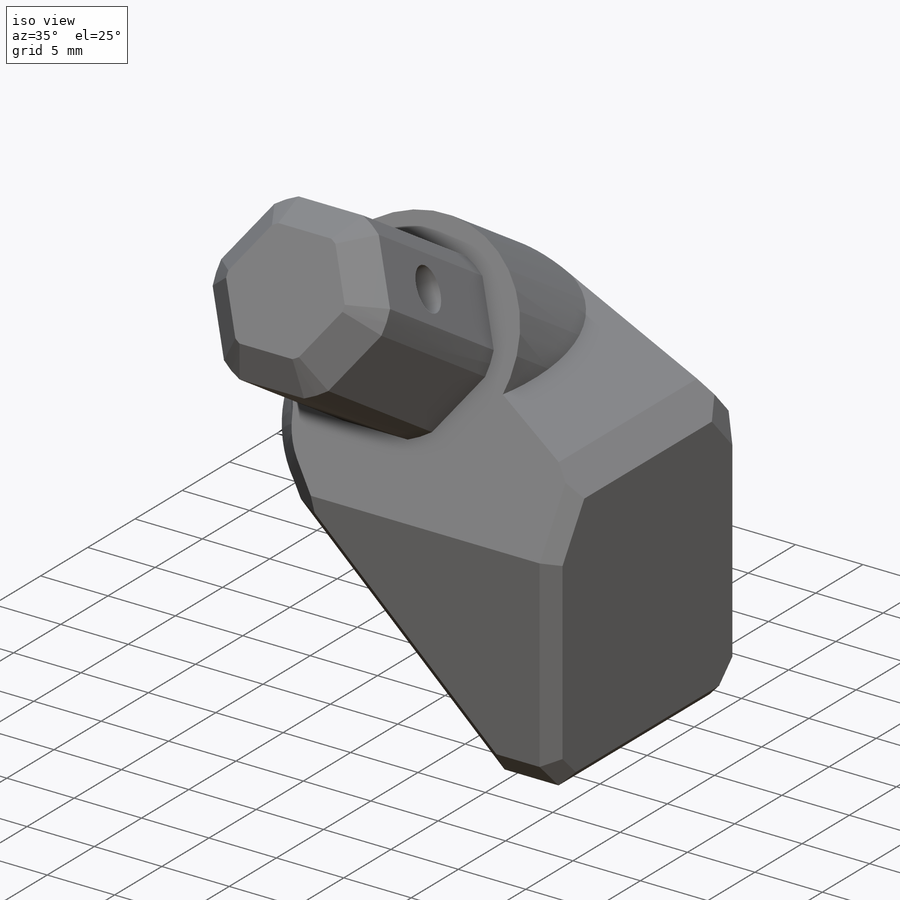
[diagram: iso view]
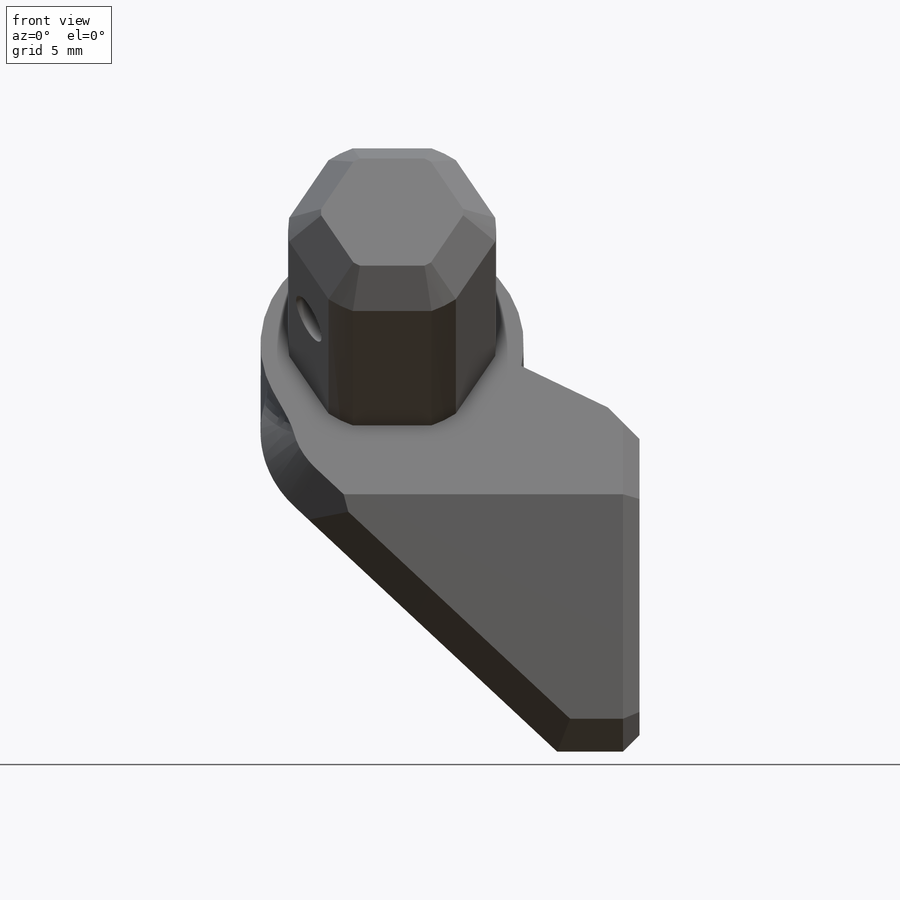
[diagram: front view]
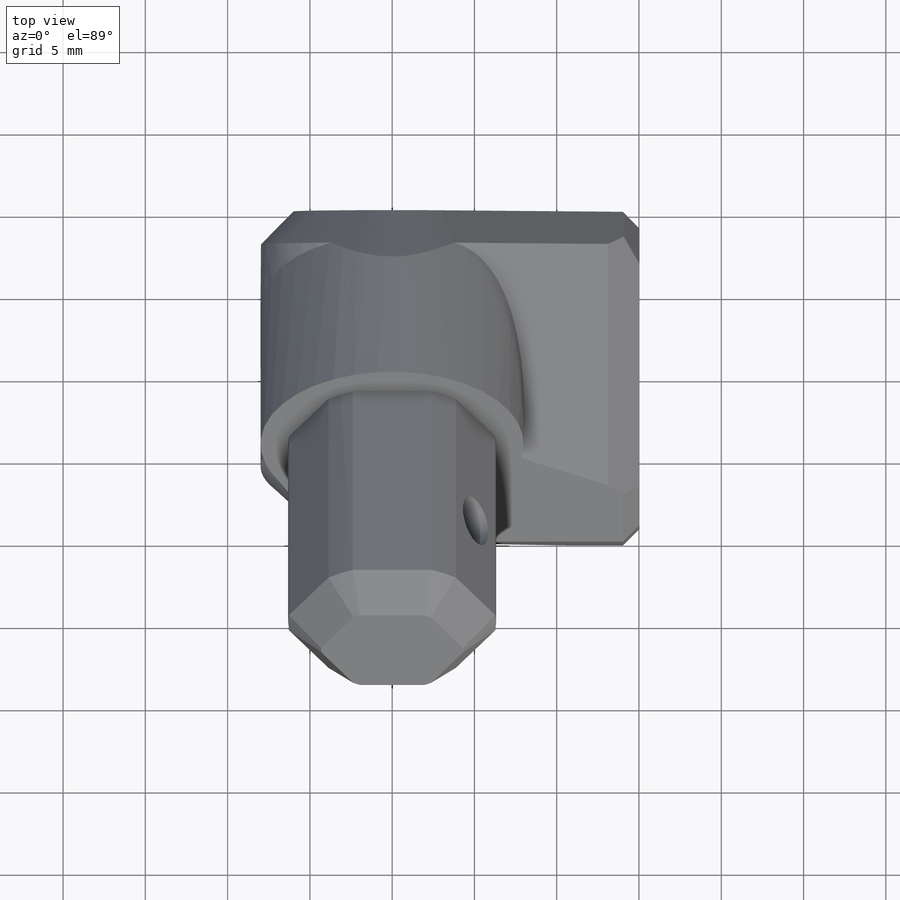
[diagram: top view]
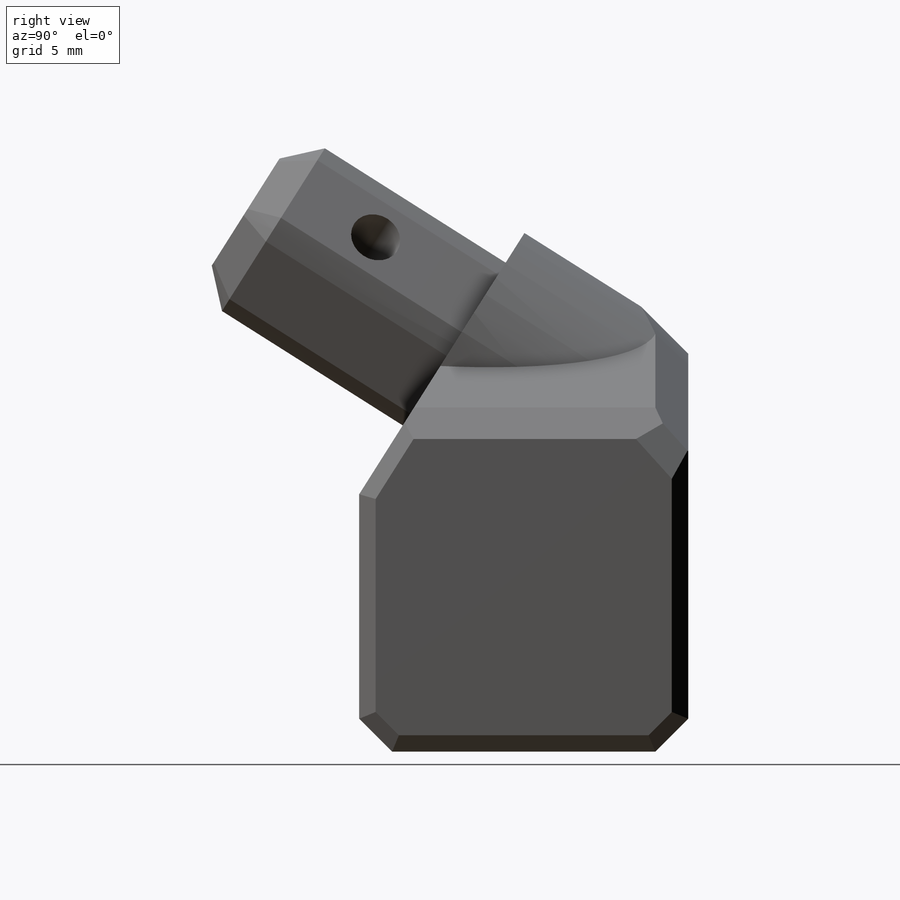
[diagram: right view]
SOLIDWORKS PART (.sldprt)
format: sldprt  version: not decoded by parser v0  size: 549,888 bytes
history: native  units: mm
features: sketch x7, chamfer x4, extrude x3, cut_extrude x3, plane x2, material x1, fillet x1 (+13 scaffold rows collapsed)
feature tree (34):
  scaffold x13  (default folders/planes/origin — collapsed)
  material  "Material <not specified>"
  sketch  "3DSketch2"  dims[c1.D1=~60.469676mm c2.D1=~35.273067mm c3.D1=~19.409303mm c4.D1=~31.733419mm c5.D1=~26.796431mm c6.D1=~42.869655mm c7.D1=12.1mm c7.D2=12.1mm c8.D2=~122.319801deg c8.D3=~1.697537mm]
  plane  "Plane1"
  plane  "Plane2"
  sketch  "Sketch2"  dims[D1=16.0mm]
  extrude  "Boss-Extrude1"  Depth=10mm
  sketch  "Sketch5"  dims[D1=10.0mm D2=10.0mm D3=15.0mm D4=~11.67234mm]
  extrude  "Boss-Extrude4"  Depth=20mm
  sketch  "Sketch8"  dims[D1=10.0mm D2=15.0mm D3=15.0mm]
  cut_extrude  "Cut-Extrude4"  Depth=20mm
  sketch  "Sketch3"  dims[D1=12.64mm D2=11.7mm]
  extrude  "Boss-Extrude2"  Depth=15mm
  chamfer  "Chamfer3"  Distance=2mm Angle=45deg
  fillet  "Fillet1"  Radius=2mm
  chamfer  "Chamfer4"  Distance=2mm Angle=45deg
  chamfer  "Chamfer5"  Distance=1mm Angle=45deg
  sketch  "Sketch9"  dims[D1=3.1mm D2=7.5mm]
  cut_extrude  "Cut-Extrude5"  [1 undecoded]
  sketch  "Sketch10"  dims[D1=6.0mm]
  cut_extrude  "Cut-Extrude6"  Depth=4mm
  chamfer  "Chamfer6"  Distance=0.5mm Angle=45deg
decode coverage: 17 of 18 modeling features carry decoded parameters
note: ~ marks probable driven/reference dimensions
note: 1 parameter value undecoded
note: suppression state not decoded; provenance and decode notes live in map.json
